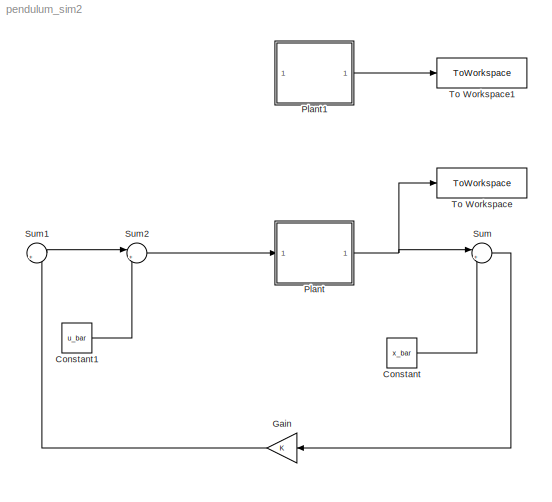
MODEL pendulum_sim2
KIND model
BLOCK [Constant] Constant
  SID = 10
  Value = x_bar
BLOCK [Constant] Constant1
  SID = 14
  Value = u_bar
BLOCK [Gain] Gain
  Gain = K
  Multiplication = Matrix(K*u)
  OutDataTypeStr = Inherit: Inherit via internal rule
  ParamDataTypeStr = Inherit: Inherit via internal rule
  SID = 11
  SaturateOnIntegerOverflow = off
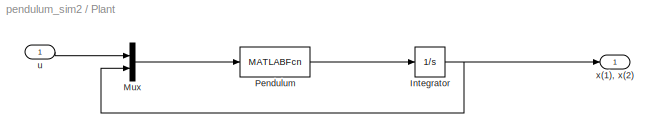
BLOCK [SubSystem] Plant
  Ports = [1, 1]
  RequestExecContextInheritance = off
  SID = 6
BLOCK [Integrator] Plant/Integrator
  InitialCondition = x0
  Ports = [1, 1]
  SID = 2
BLOCK [Mux] Plant/Mux
  DisplayOption = bar
  Inputs = 2
  Ports = [2, 1]
  SID = 3
BLOCK [MATLABFcn] Plant/Pendulum
  MATLABFcn = pendulum(u)
  Ports = [1, 1]
  SID = 1
BLOCK [Inport] Plant/u
  IconDisplay = Port number
  SID = 7
BLOCK [Outport] Plant/x(1), x(2)
  IconDisplay = Port number
  SID = 8
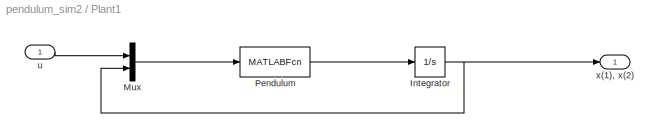
BLOCK [SubSystem] Plant1
  Ports = [1, 1]
  RequestExecContextInheritance = off
  SID = 16
BLOCK [Integrator] Plant1/Integrator
  InitialCondition = x0
  Ports = [1, 1]
  SID = 18
BLOCK [Mux] Plant1/Mux
  DisplayOption = bar
  Inputs = 2
  Ports = [2, 1]
  SID = 19
BLOCK [MATLABFcn] Plant1/Pendulum
  MATLABFcn = pendulum(u)
  Ports = [1, 1]
  SID = 20
BLOCK [Inport] Plant1/u
  IconDisplay = Port number
  SID = 17
BLOCK [Outport] Plant1/x(1), x(2)
  IconDisplay = Port number
  SID = 21
BLOCK [Sum] Sum
  IconShape = round
  InputSameDT = off
  Inputs = |+-
  OutDataTypeStr = Inherit: Inherit via internal rule
  Ports = [2, 1]
  SID = 9
  SaturateOnIntegerOverflow = off
BLOCK [Sum] Sum1
  IconShape = round
  InputSameDT = off
  Inputs = |+-
  OutDataTypeStr = Inherit: Inherit via internal rule
  Ports = [2, 1]
  SID = 12
  SaturateOnIntegerOverflow = off
BLOCK [Sum] Sum2
  IconShape = round
  InputSameDT = off
  Inputs = |++
  OutDataTypeStr = Inherit: Inherit via internal rule
  Ports = [2, 1]
  SID = 13
  SaturateOnIntegerOverflow = off
BLOCK [ToWorkspace] To Workspace
  FixptAsFi = on
  MaxDataPoints = inf
  Ports = [1]
  SID = 15
  SampleTime = -1
  VariableName = X_C
BLOCK [ToWorkspace] To Workspace1
  FixptAsFi = on
  MaxDataPoints = inf
  Ports = [1]
  SID = 22
  SampleTime = -1
  VariableName = X_NC
LINE Constant1:1 -> Sum2:2
LINE Constant:1 -> Sum:2
LINE Gain:1 -> Sum1:2
NET Plant/Integrator:1 -> Plant/Mux:2, Plant/x(1), x(2):1
LINE Plant/Mux:1 -> Plant/Pendulum:1
LINE Plant/Pendulum:1 -> Plant/Integrator:1
LINE Plant/u:1 -> Plant/Mux:1
NET Plant1/Integrator:1 -> Plant1/Mux:2, Plant1/x(1), x(2):1
LINE Plant1/Mux:1 -> Plant1/Pendulum:1
LINE Plant1/Pendulum:1 -> Plant1/Integrator:1
LINE Plant1/u:1 -> Plant1/Mux:1
LINE Plant1:1 -> To Workspace1:1
NET Plant:1 -> Sum:1, To Workspace:1
LINE Sum1:1 -> Sum2:1
LINE Sum2:1 -> Plant:1
LINE Sum:1 -> Gain:1
note: NET lines group one-source signal fan-out (src -> all destinations, sorted); 1:1 wires keep LINE
